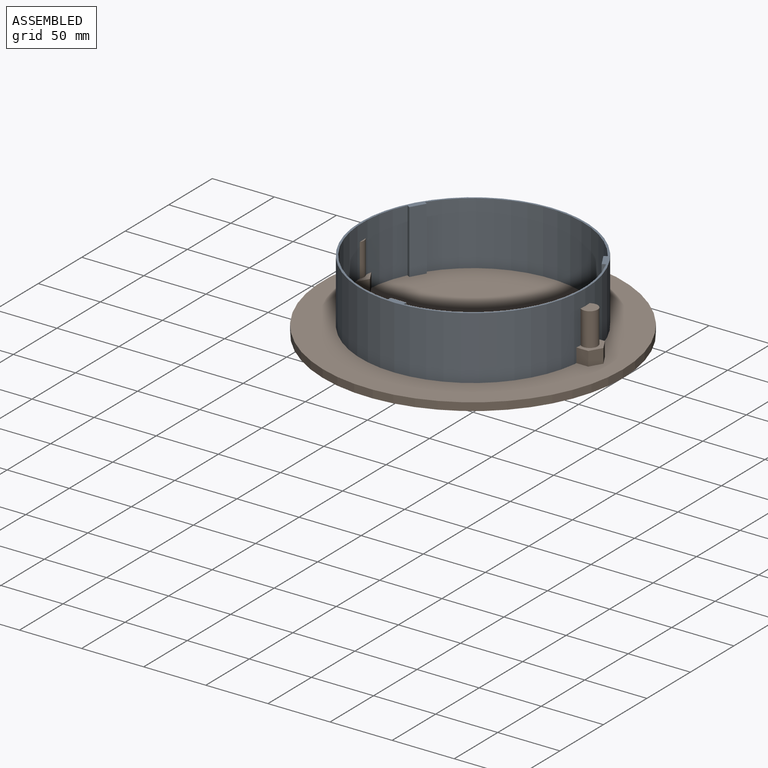
[diagram: assembled view]
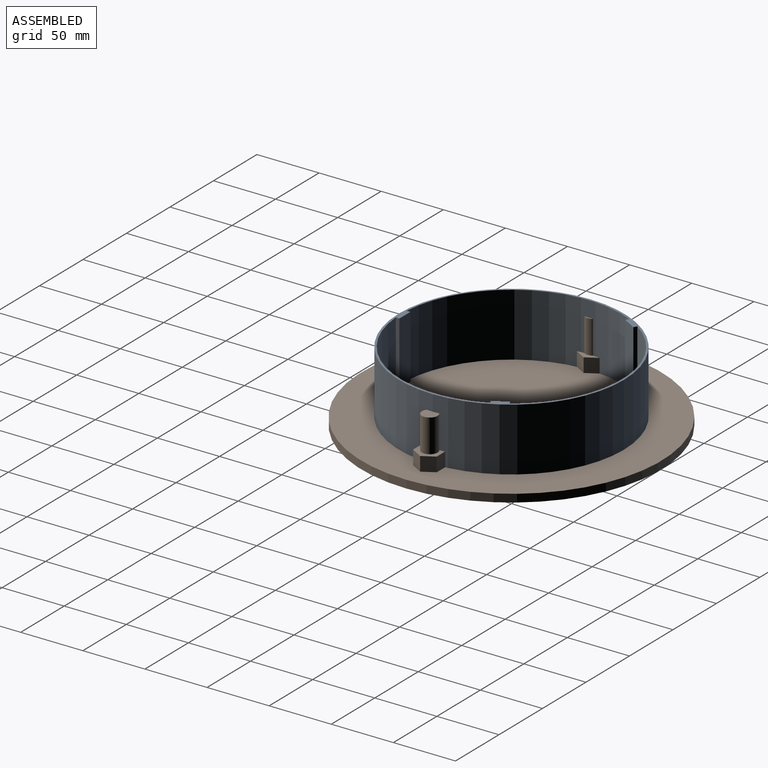
[diagram: assembled view, second angle]
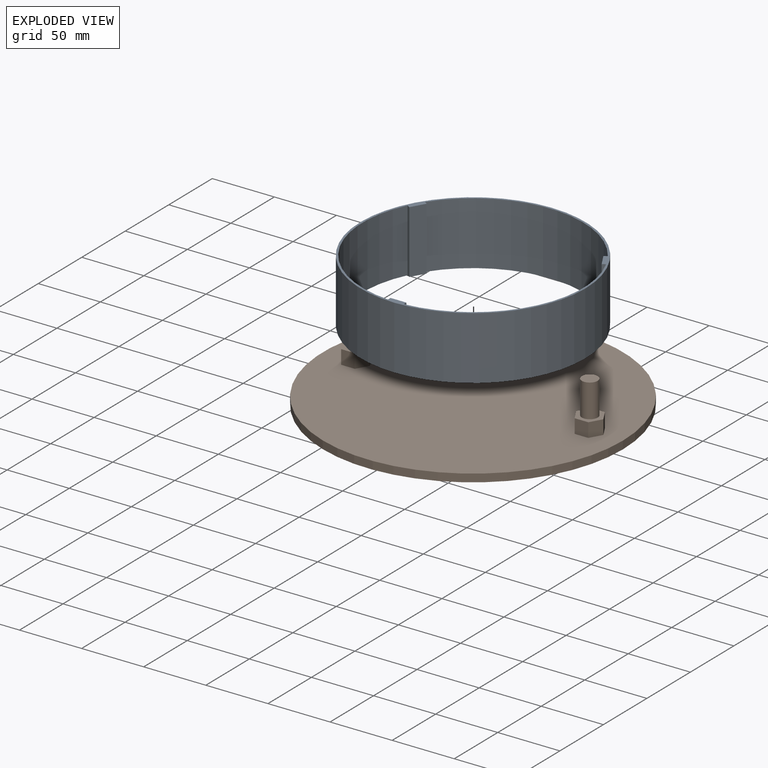
[diagram: exploded view]
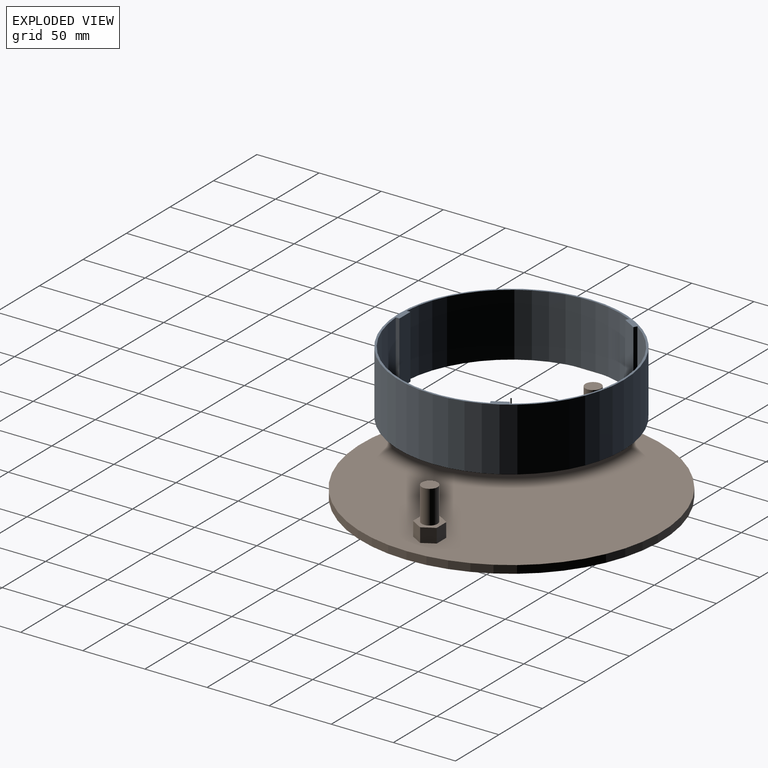
[diagram: exploded view, second angle]
ASSEMBLY  parts=2 mates=2
PART A: 15 faces, bbox 181x181x50.8 mm
  f0: plane 50.8x11mm, normal (-0.87,-0.5,0), area 645.2mm2, adj f1,f11,f13,f14
  f1: plane 50.8x2.55mm, normal (0.5,-0.87,0), area 149.8mm2, adj f0,f2,f13,f14
  f2: cylinder r=88.9mm len=127.51mm, axis (0,0,-1), area 8812.8mm2, adj f1,f3,f13,f14
  f3: plane 50.8x2.95mm, normal (1,0,0), area 149.8mm2, adj f2,f4,f13,f14
  f4: plane 50.8x12.7mm, normal (0,1,0), area 645.2mm2, adj f3,f5,f13,f14
  f5: plane 50.8x2.95mm, normal (-1,0,0), area 149.8mm2, adj f4,f6,f13,f14
  f6: cylinder r=88.9mm len=127.51mm, axis (0,0,-1), area 8812.8mm2, adj f5,f7,f13,f14
  f7: plane 50.8x2.55mm, normal (-0.5,-0.87,0), area 149.8mm2, adj f6,f8,f13,f14
  f8: plane 50.8x11mm, normal (0.87,-0.5,0), area 645.2mm2, adj f7,f9,f13,f14
  f9: plane 50.8x2.55mm, normal (0.5,0.87,0), area 149.8mm2, adj f8,f10,f13,f14
  f10: cylinder r=88.9mm len=147.24mm, axis (0,0,-1), area 8812.8mm2, adj f9,f11,f13,f14
  f11: plane 50.8x2.55mm, normal (-0.5,0.87,0), area 149.8mm2, adj f0,f10,f13,f14
  f12: cylinder r=90.49mm len=180.98mm, axis (0,0,-1), area 28882.3mm2, adj f13,f14
  f13: plane 180.98x180.98mm, normal (0,0,1), area 1012.7mm2, adj f0,f1,f2,f3,f4,f5,f6,f7
  f14: plane 180.98x180.98mm, normal (0,0,-1), area 1012.7mm2, adj f0,f1,f2,f3,f4,f5,f6,f7
PART B: 21 faces, bbox 241.3x241.3x44.5 mm
  f0: cylinder r=120.65mm len=241.3mm, axis (0,0,-1), area 4813.7mm2, adj f1,f2
  f1: plane 241.3x241.3mm, normal (0,0,1), area 45101.8mm2, adj f0,f3,f4,f5,f6,f7,f8,f12
  f2: plane 241.3x241.3mm, normal (0,0,-1), area 45730.3mm2, adj f0
  f3: plane 11.38x9.53mm, normal (-0.87,0.5,0), area 125.2mm2, adj f1,f4,f8,f9
  f4: plane 11.38x9.53mm, normal (-0.87,-0.5,0), area 125.2mm2, adj f1,f3,f5,f9
  f5: plane 11.38x11mm, normal (0,-1,0), area 125.2mm2, adj f1,f4,f6,f9
  f6: plane 11.38x9.53mm, normal (0.87,-0.5,0), area 125.2mm2, adj f1,f5,f7,f9
  f7: plane 11.38x9.53mm, normal (0.87,0.5,0), area 125.2mm2, adj f1,f6,f8,f9
  f8: plane 11.38x11mm, normal (0,1,0), area 125.2mm2, adj f1,f3,f7,f9
  f9: plane 22x19.05mm, normal (0,0,1), area 187.6mm2, adj f3,f4,f5,f6,f7,f8,f11
  f10: plane 12.7x12.7mm, normal (0,0,1), area 126.7mm2, adj f11
  f11: cylinder r=6.35mm len=26.72mm, axis (0,0,-1), area 1066.1mm2, adj f9,f10
  f12: plane 11.38x9.53mm, normal (-0.87,0.5,0), area 125.2mm2, adj f1,f13,f17,f18
  f13: plane 11.38x9.53mm, normal (-0.87,-0.5,0), area 125.2mm2, adj f1,f12,f14,f18
  f14: plane 11.38x11mm, normal (0,-1,0), area 125.2mm2, adj f1,f13,f15,f18
  f15: plane 11.38x9.53mm, normal (0.87,-0.5,0), area 125.2mm2, adj f1,f14,f16,f18
  f16: plane 11.38x9.53mm, normal (0.87,0.5,0), area 125.2mm2, adj f1,f15,f17,f18
  f17: plane 11.38x11mm, normal (0,1,0), area 125.2mm2, adj f1,f12,f16,f18
  f18: plane 22x19.05mm, normal (0,0,1), area 187.6mm2, adj f12,f13,f14,f15,f16,f17,f20
  f19: plane 12.7x12.7mm, normal (0,0,1), area 126.7mm2, adj f20
  f20: cylinder r=6.35mm len=26.72mm, axis (0,0,-1), area 1066.1mm2, adj f18,f19
PLACE A at identity
PLACE B t=(0,0,-6.35)mm
MATE cylindrical A.f2 <-> B.f0  axis (0,0,-1) through (0,0,25.4)mm
MATE planar B.f0 <-> A.f14  axis (0,0,1) through (0,0,0)mm
